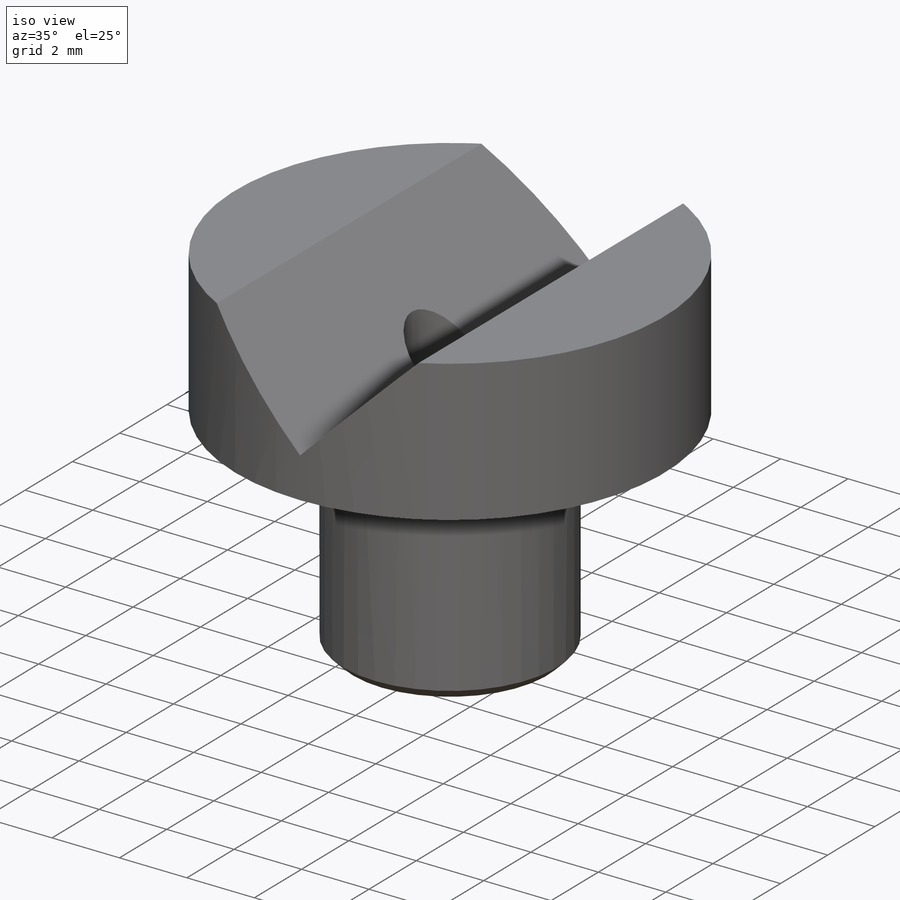
[diagram: iso view]
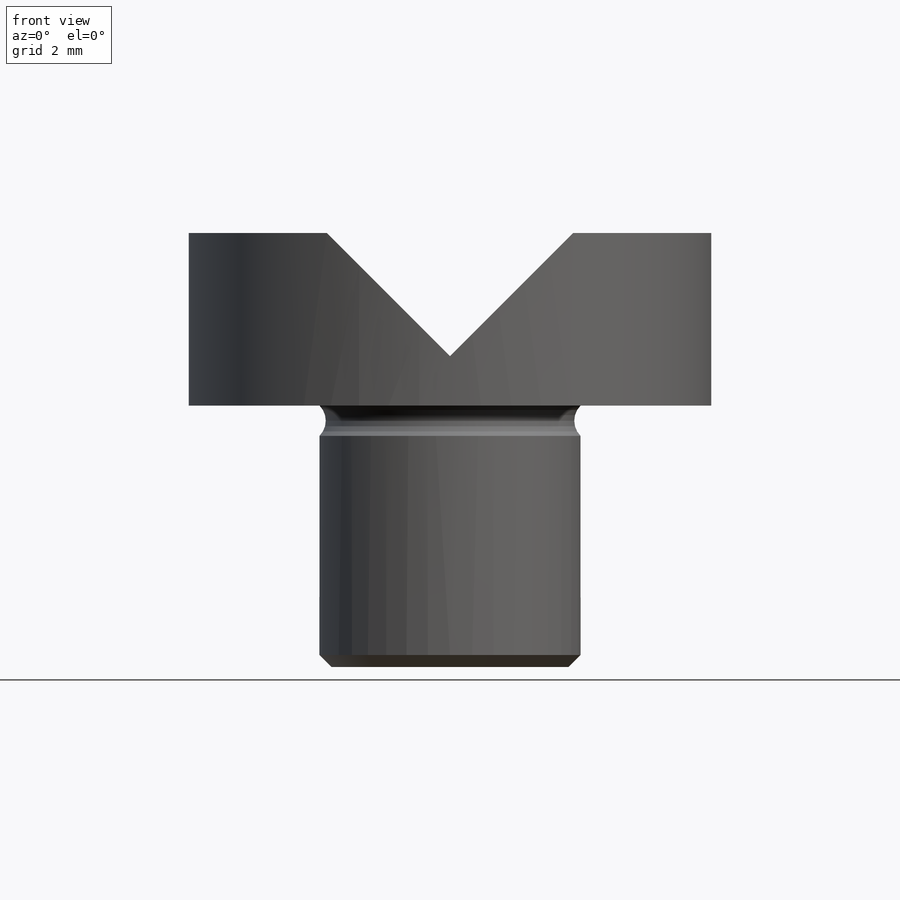
[diagram: front view]
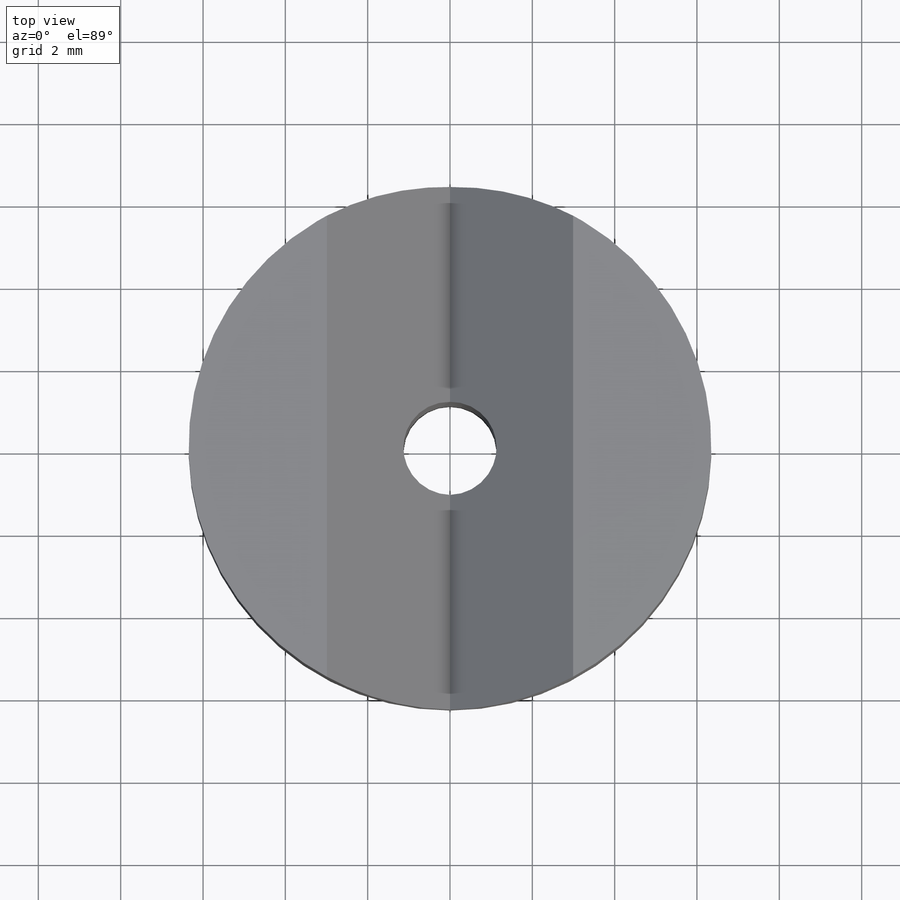
[diagram: top view]
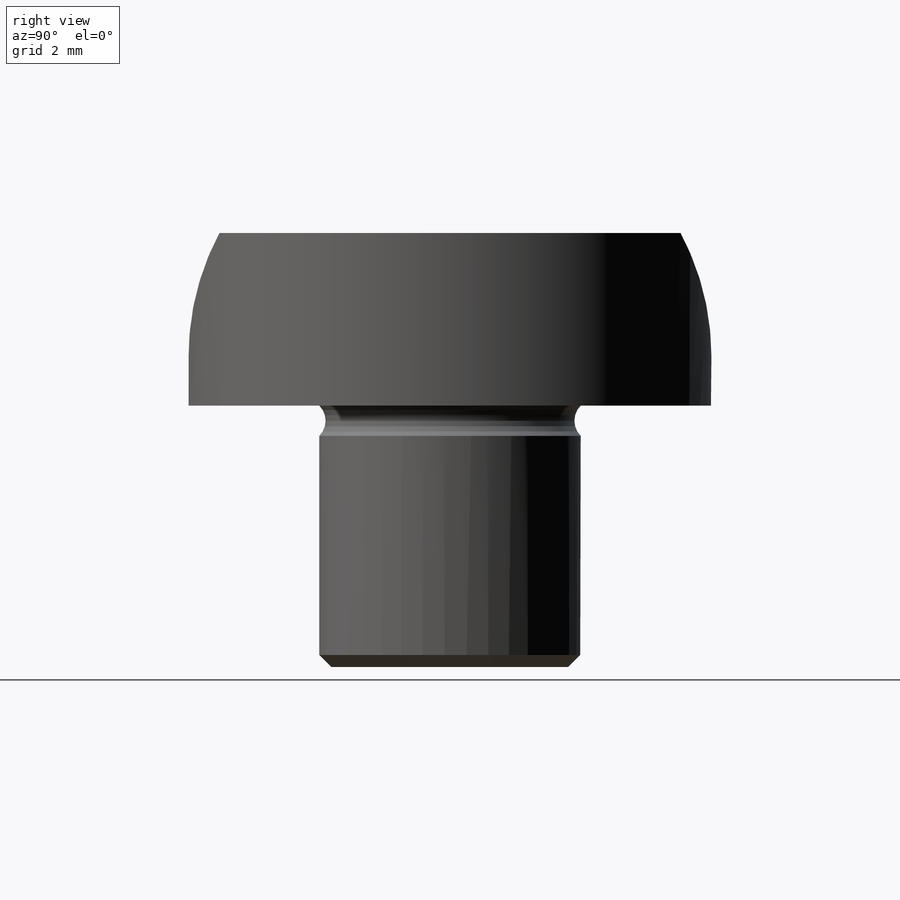
[diagram: right view]
SOLIDWORKS PART (.sldprt)
format: sldprt  version: not decoded by parser v0  size: 232,448 bytes
history: native  units: mm
features: sketch x4, plane x3, cut_revolve x2, material x1, revolve x1, cut_extrude x1, thread x1, chamfer x1 + 2 further entries (+8 scaffold rows collapsed)
feature tree (24):
  scaffold x8  (default folders/planes/origin — collapsed)
  material  "Material <not specified>"
  plane  "Plane X-Y"
  plane  "Plane X-Z"
  plane  "Plane Y-Z"
  "Axis - Y"
  "Axis - Z"
  sketch  "Sketch9"  dims[c1.D1=~4.69829mm c1.D2=4.191mm c2.D1=12.7mm c2.D3=6.35mm c2.D4=6.35mm]
  revolve  "Revolve1"  Angle=360deg
  sketch  "Sketch3"  dims[c1.D2=6.35mm c1.D4=6.35mm c1.D1=~5.983056mm c1.B=2.159mm c1.D=2.0066mm c2.D2=2.3622mm c2.D3=8.8646mm]
  cut_extrude  "Cut-Extrude1"  [1 undecoded]
  sketch  "Sketch7"  dims[G=4.7625mm TAP_DIA=2.2606mm H=2.1844mm]
  cut_revolve  "Cut-Revolve1"  [1 undecoded]
  thread  "Cosmetic Thread1"  Diameter=2.8448mm THREAD-MAJOR-DIA=2.8448mm  [1 undecoded]
  chamfer  "Chamfer1"  Distance=0.2921mm Angle=45deg
  sketch  "Sketch10"  dims[c1.D1=6.0452mm c1.D2=12.7mm c2.D2=45.0deg]
  cut_revolve  "Cut-Revolve2"  Angle=360deg
decode coverage: 8 of 10 modeling features carry decoded parameters; 2 rows unclassified (native names shown)
note: ~ marks probable driven/reference dimensions
note: 3 parameter values undecoded
note: suppression state not decoded; provenance and decode notes live in map.json
